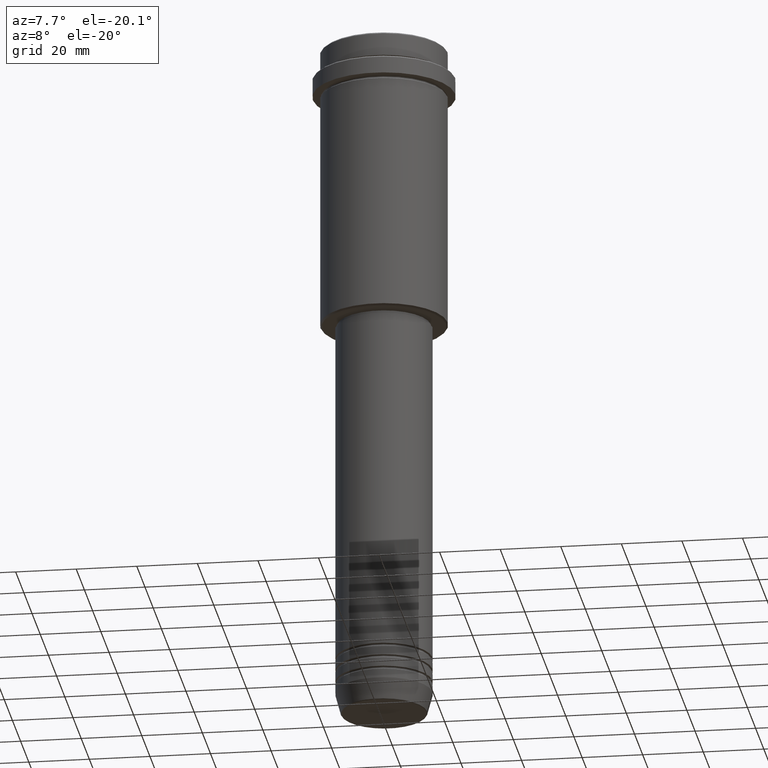
[diagram: clean part render]
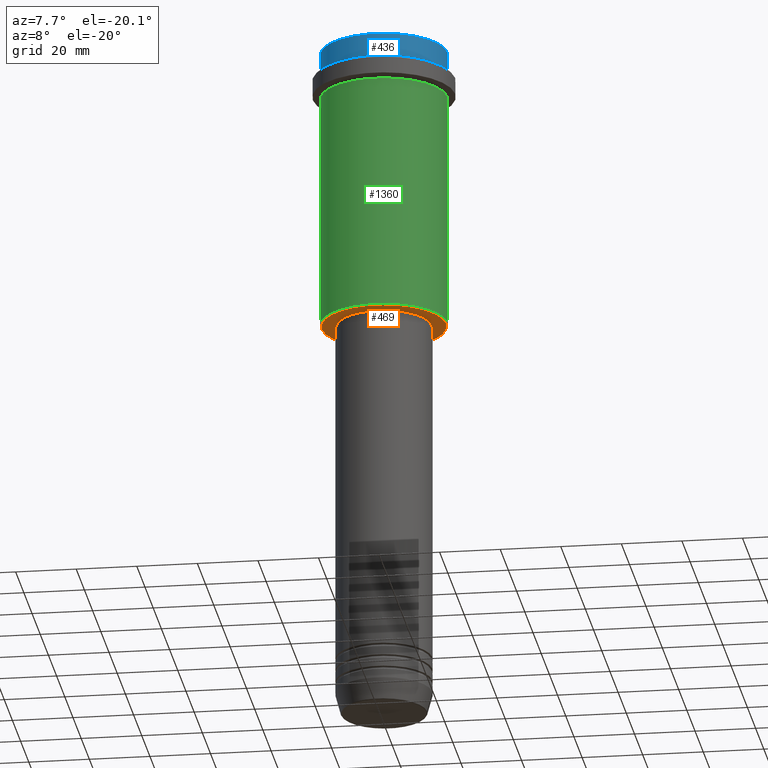
[diagram: same view with three faces highlighted in distinct colors, each labeled with its STEP entity id]
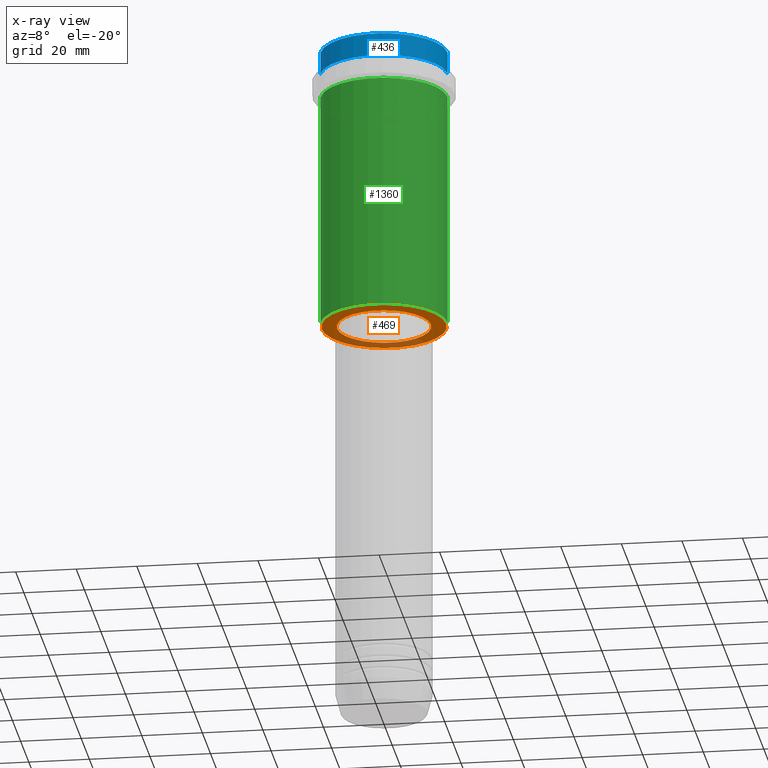
[diagram: x-ray of the same camera — body ghosted, the three highlighted faces saturated]
A machine part, auxiliary view with three faces highlighted in distinct colors.
The next image is the same camera in x-ray (body ghosted, the three faces saturated) — at least one of them is partly hidden behind the body in this view.
Their STEP definitions:

[orange] entity #469 — the highlighted planar face has unit normal (0, 0, -1).
#28 = CIRCLE ( 'NONE', #670, 15.50000000000000000 ) ;
#45 = DIRECTION ( 'NONE',  ( 1.000000000000000000, 0.000000000000000000, 0.000000000000000000 ) ) ;
#68 = AXIS2_PLACEMENT_3D ( 'NONE', #1310, #225, #672 ) ;
#73 = ORIENTED_EDGE ( 'NONE', *, *, #704, .T. ) ;
#76 = DIRECTION ( 'NONE',  ( -0.000000000000000000, -0.000000000000000000, 1.000000000000000000 ) ) ;
#79 = VERTEX_POINT ( 'NONE', #257 ) ;
#140 = AXIS2_PLACEMENT_3D ( 'NONE', #1228, #76, #45 ) ;
#178 = PLANE ( 'NONE',  #328 ) ;
#211 = DIRECTION ( 'NONE',  ( 0.000000000000000000, 0.000000000000000000, -1.000000000000000000 ) ) ;
#213 = CARTESIAN_POINT ( 'NONE',  ( -20.49999999999998934, 2.541142108230757085E-15, -95.00000000000000000 ) ) ;
#225 = DIRECTION ( 'NONE',  ( 0.000000000000000000, 0.000000000000000000, -1.000000000000000000 ) ) ;
#250 = VERTEX_POINT ( 'NONE', #213 ) ;
#257 = CARTESIAN_POINT ( 'NONE',  ( -15.50000000000000000, 1.898202538678397557E-15, -95.00000000000000000 ) ) ;
#328 = AXIS2_PLACEMENT_3D ( 'NONE', #848, #211, #539 ) ;
#437 = DIRECTION ( 'NONE',  ( 1.000000000000000000, 0.000000000000000000, 0.000000000000000000 ) ) ;
#469 = ADVANCED_FACE ( 'NONE', ( #717, #1162 ), #178, .T. ) ;
#539 = DIRECTION ( 'NONE',  ( -1.000000000000000000, 0.000000000000000000, -0.000000000000000000 ) ) ;
#547 = DIRECTION ( 'NONE',  ( -0.000000000000000000, -0.000000000000000000, 1.000000000000000000 ) ) ;
#554 = CARTESIAN_POINT ( 'NONE',  ( 0.000000000000000000, 0.000000000000000000, -95.00000000000000000 ) ) ;
#558 = EDGE_CURVE ( 'NONE', #871, #250, #1093, .T. ) ;
#574 = AXIS2_PLACEMENT_3D ( 'NONE', #787, #1113, #575 ) ;
#575 = DIRECTION ( 'NONE',  ( -1.000000000000000000, 0.000000000000000000, 0.000000000000000000 ) ) ;
#670 = AXIS2_PLACEMENT_3D ( 'NONE', #554, #547, #437 ) ;
#672 = DIRECTION ( 'NONE',  ( -1.000000000000000000, 0.000000000000000000, 0.000000000000000000 ) ) ;
#688 = ORIENTED_EDGE ( 'NONE', *, *, #917, .T. ) ;
#704 = EDGE_CURVE ( 'NONE', #1109, #79, #1392, .T. ) ;
#717 = FACE_OUTER_BOUND ( 'NONE', #1019, .T. ) ;
#778 = CARTESIAN_POINT ( 'NONE',  ( 15.50000000000000000, 0.000000000000000000, -95.00000000000000000 ) ) ;
#787 = CARTESIAN_POINT ( 'NONE',  ( 0.000000000000000000, 0.000000000000000000, -95.00000000000000000 ) ) ;
#811 = CARTESIAN_POINT ( 'NONE',  ( 20.49999999999998934, 0.000000000000000000, -95.00000000000000000 ) ) ;
#848 = CARTESIAN_POINT ( 'NONE',  ( 0.000000000000000000, 21.00000000000000000, -95.00000000000000000 ) ) ;
#871 = VERTEX_POINT ( 'NONE', #811 ) ;
#885 = ORIENTED_EDGE ( 'NONE', *, *, #558, .T. ) ;
#917 = EDGE_CURVE ( 'NONE', #79, #1109, #28, .T. ) ;
#1019 = EDGE_LOOP ( 'NONE', ( #885, #1150 ) ) ;
#1075 = CIRCLE ( 'NONE', #574, 20.49999999999998934 ) ;
#1093 = CIRCLE ( 'NONE', #68, 20.49999999999998934 ) ;
#1104 = EDGE_CURVE ( 'NONE', #250, #871, #1075, .T. ) ;
#1109 = VERTEX_POINT ( 'NONE', #778 ) ;
#1113 = DIRECTION ( 'NONE',  ( 0.000000000000000000, 0.000000000000000000, -1.000000000000000000 ) ) ;
#1150 = ORIENTED_EDGE ( 'NONE', *, *, #1104, .T. ) ;
#1162 = FACE_BOUND ( 'NONE', #1368, .T. ) ;
#1228 = CARTESIAN_POINT ( 'NONE',  ( 0.000000000000000000, 0.000000000000000000, -95.00000000000000000 ) ) ;
#1310 = CARTESIAN_POINT ( 'NONE',  ( 0.000000000000000000, 0.000000000000000000, -95.00000000000000000 ) ) ;
#1368 = EDGE_LOOP ( 'NONE', ( #73, #688 ) ) ;
#1392 = CIRCLE ( 'NONE', #140, 15.50000000000000000 ) ;

[blue] entity #436 — the highlighted cylindrical surface (partial cylindrical patch) has radius 21 mm, axis along (-0, -0, 1).
#55 = VERTEX_POINT ( 'NONE', #1337 ) ;
#108 = CARTESIAN_POINT ( 'NONE',  ( 20.99999999999999645, 0.000000000000000000, -0.5000000000000073275 ) ) ;
#122 = DIRECTION ( 'NONE',  ( -0.000000000000000000, -0.000000000000000000, 1.000000000000000000 ) ) ;
#262 = VERTEX_POINT ( 'NONE', #668 ) ;
#285 = CARTESIAN_POINT ( 'NONE',  ( 0.000000000000000000, 0.000000000000000000, -7.999999999999998224 ) ) ;
#302 = VERTEX_POINT ( 'NONE', #906 ) ;
#348 = DIRECTION ( 'NONE',  ( 1.000000000000000000, 0.000000000000000000, 0.000000000000000000 ) ) ;
#381 = ORIENTED_EDGE ( 'NONE', *, *, #602, .T. ) ;
#402 = DIRECTION ( 'NONE',  ( -0.000000000000000000, -0.000000000000000000, 1.000000000000000000 ) ) ;
#411 = CARTESIAN_POINT ( 'NONE',  ( 20.99999999999999645, 0.000000000000000000, 0.000000000000000000 ) ) ;
#425 = FACE_OUTER_BOUND ( 'NONE', #1045, .T. ) ;
#429 = VECTOR ( 'NONE', #122, 1000.000000000000000 ) ;
#436 = ADVANCED_FACE ( 'NONE', ( #425 ), #1105, .T. ) ;
#516 = EDGE_CURVE ( 'NONE', #972, #55, #1345, .T. ) ;
#517 = DIRECTION ( 'NONE',  ( -0.000000000000000000, -0.000000000000000000, 1.000000000000000000 ) ) ;
#602 = EDGE_CURVE ( 'NONE', #262, #972, #1348, .T. ) ;
#668 = CARTESIAN_POINT ( 'NONE',  ( 20.99999999999999645, 0.000000000000000000, -7.999999999999998224 ) ) ;
#748 = CIRCLE ( 'NONE', #1396, 20.99999999999999645 ) ;
#760 = DIRECTION ( 'NONE',  ( 0.000000000000000000, 0.000000000000000000, -1.000000000000000000 ) ) ;
#832 = AXIS2_PLACEMENT_3D ( 'NONE', #1002, #1088, #846 ) ;
#846 = DIRECTION ( 'NONE',  ( 1.000000000000000000, 0.000000000000000000, 0.000000000000000000 ) ) ;
#853 = VECTOR ( 'NONE', #517, 1000.000000000000000 ) ;
#906 = CARTESIAN_POINT ( 'NONE',  ( -20.99999999999999645, 2.571758278209441267E-15, -7.999999999999998224 ) ) ;
#942 = ORIENTED_EDGE ( 'NONE', *, *, #516, .T. ) ;
#950 = ORIENTED_EDGE ( 'NONE', *, *, #1289, .T. ) ;
#972 = VERTEX_POINT ( 'NONE', #108 ) ;
#1002 = CARTESIAN_POINT ( 'NONE',  ( 0.000000000000000000, 0.000000000000000000, 0.000000000000000000 ) ) ;
#1021 = CARTESIAN_POINT ( 'NONE',  ( 0.000000000000000000, 0.000000000000000000, -0.5000000000000073275 ) ) ;
#1045 = EDGE_LOOP ( 'NONE', ( #1216, #950, #381, #942 ) ) ;
#1088 = DIRECTION ( 'NONE',  ( -0.000000000000000000, -0.000000000000000000, 1.000000000000000000 ) ) ;
#1097 = LINE ( 'NONE', #1297, #429 ) ;
#1105 = CYLINDRICAL_SURFACE ( 'NONE', #832, 20.99999999999999645 ) ;
#1144 = AXIS2_PLACEMENT_3D ( 'NONE', #1021, #760, #348 ) ;
#1155 = DIRECTION ( 'NONE',  ( 1.000000000000000000, 0.000000000000000000, 0.000000000000000000 ) ) ;
#1216 = ORIENTED_EDGE ( 'NONE', *, *, #1402, .F. ) ;
#1289 = EDGE_CURVE ( 'NONE', #302, #262, #748, .T. ) ;
#1297 = CARTESIAN_POINT ( 'NONE',  ( -20.99999999999999645, 2.571758278209441267E-15, 0.000000000000000000 ) ) ;
#1337 = CARTESIAN_POINT ( 'NONE',  ( -20.99999999999999645, 2.571758278209441267E-15, -0.5000000000000073275 ) ) ;
#1345 = CIRCLE ( 'NONE', #1144, 20.99999999999999645 ) ;
#1348 = LINE ( 'NONE', #411, #853 ) ;
#1396 = AXIS2_PLACEMENT_3D ( 'NONE', #285, #402, #1155 ) ;
#1402 = EDGE_CURVE ( 'NONE', #302, #55, #1097, .T. ) ;

[green] entity #1360 — the highlighted cylindrical surface (partial cylindrical patch) has radius 21 mm, axis along (-0, -0, 1).
#3 = FACE_OUTER_BOUND ( 'NONE', #775, .T. ) ;
#7 = ORIENTED_EDGE ( 'NONE', *, *, #1147, .T. ) ;
#92 = DIRECTION ( 'NONE',  ( -0.000000000000000000, -0.000000000000000000, 1.000000000000000000 ) ) ;
#136 = EDGE_CURVE ( 'NONE', #1196, #1242, #382, .T. ) ;
#155 = CARTESIAN_POINT ( 'NONE',  ( -20.99999999999999645, 2.571758278209441267E-15, -94.49999999999997158 ) ) ;
#184 = EDGE_CURVE ( 'NONE', #1080, #1196, #887, .T. ) ;
#206 = DIRECTION ( 'NONE',  ( 1.000000000000000000, 0.000000000000000000, 0.000000000000000000 ) ) ;
#235 = CARTESIAN_POINT ( 'NONE',  ( 0.000000000000000000, 0.000000000000000000, -94.49999999999997158 ) ) ;
#291 = AXIS2_PLACEMENT_3D ( 'NONE', #235, #1249, #1341 ) ;
#297 = ORIENTED_EDGE ( 'NONE', *, *, #136, .F. ) ;
#303 = CARTESIAN_POINT ( 'NONE',  ( 0.000000000000000000, 0.000000000000000000, -16.00000000000000355 ) ) ;
#315 = DIRECTION ( 'NONE',  ( 1.000000000000000000, 0.000000000000000000, 0.000000000000000000 ) ) ;
#350 = DIRECTION ( 'NONE',  ( -0.000000000000000000, -0.000000000000000000, 1.000000000000000000 ) ) ;
#382 = CIRCLE ( 'NONE', #743, 20.99999999999999645 ) ;
#538 = CARTESIAN_POINT ( 'NONE',  ( 0.000000000000000000, 0.000000000000000000, 0.000000000000000000 ) ) ;
#546 = CARTESIAN_POINT ( 'NONE',  ( -20.99999999999999645, 2.571758278209441267E-15, 0.000000000000000000 ) ) ;
#631 = DIRECTION ( 'NONE',  ( -0.000000000000000000, -0.000000000000000000, 1.000000000000000000 ) ) ;
#644 = AXIS2_PLACEMENT_3D ( 'NONE', #538, #92, #315 ) ;
#656 = DIRECTION ( 'NONE',  ( -0.000000000000000000, -0.000000000000000000, 1.000000000000000000 ) ) ;
#743 = AXIS2_PLACEMENT_3D ( 'NONE', #303, #656, #206 ) ;
#775 = EDGE_LOOP ( 'NONE', ( #966, #7, #1229, #297 ) ) ;
#887 = LINE ( 'NONE', #546, #1199 ) ;
#966 = ORIENTED_EDGE ( 'NONE', *, *, #184, .F. ) ;
#975 = CIRCLE ( 'NONE', #291, 20.99999999999999645 ) ;
#1039 = LINE ( 'NONE', #1059, #1374 ) ;
#1043 = CARTESIAN_POINT ( 'NONE',  ( 20.99999999999999645, 0.000000000000000000, -16.00000000000000355 ) ) ;
#1059 = CARTESIAN_POINT ( 'NONE',  ( 20.99999999999999645, 0.000000000000000000, 0.000000000000000000 ) ) ;
#1080 = VERTEX_POINT ( 'NONE', #155 ) ;
#1147 = EDGE_CURVE ( 'NONE', #1080, #1398, #975, .T. ) ;
#1167 = CARTESIAN_POINT ( 'NONE',  ( -20.99999999999999645, 2.571758278209441267E-15, -16.00000000000000355 ) ) ;
#1187 = CYLINDRICAL_SURFACE ( 'NONE', #644, 20.99999999999999645 ) ;
#1196 = VERTEX_POINT ( 'NONE', #1167 ) ;
#1199 = VECTOR ( 'NONE', #350, 1000.000000000000000 ) ;
#1229 = ORIENTED_EDGE ( 'NONE', *, *, #1251, .T. ) ;
#1242 = VERTEX_POINT ( 'NONE', #1043 ) ;
#1249 = DIRECTION ( 'NONE',  ( -0.000000000000000000, -0.000000000000000000, 1.000000000000000000 ) ) ;
#1251 = EDGE_CURVE ( 'NONE', #1398, #1242, #1039, .T. ) ;
#1341 = DIRECTION ( 'NONE',  ( -1.000000000000000000, 0.000000000000000000, 0.000000000000000000 ) ) ;
#1360 = ADVANCED_FACE ( 'NONE', ( #3 ), #1187, .T. ) ;
#1374 = VECTOR ( 'NONE', #631, 1000.000000000000000 ) ;
#1398 = VERTEX_POINT ( 'NONE', #1399 ) ;
#1399 = CARTESIAN_POINT ( 'NONE',  ( 20.99999999999999645, 0.000000000000000000, -94.49999999999997158 ) ) ;